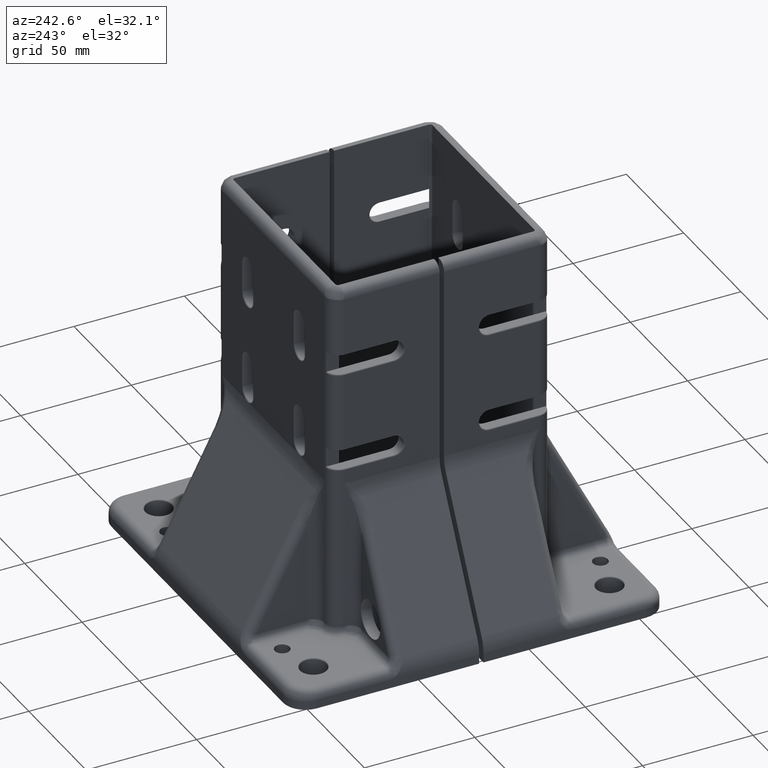
[diagram: clean part render]
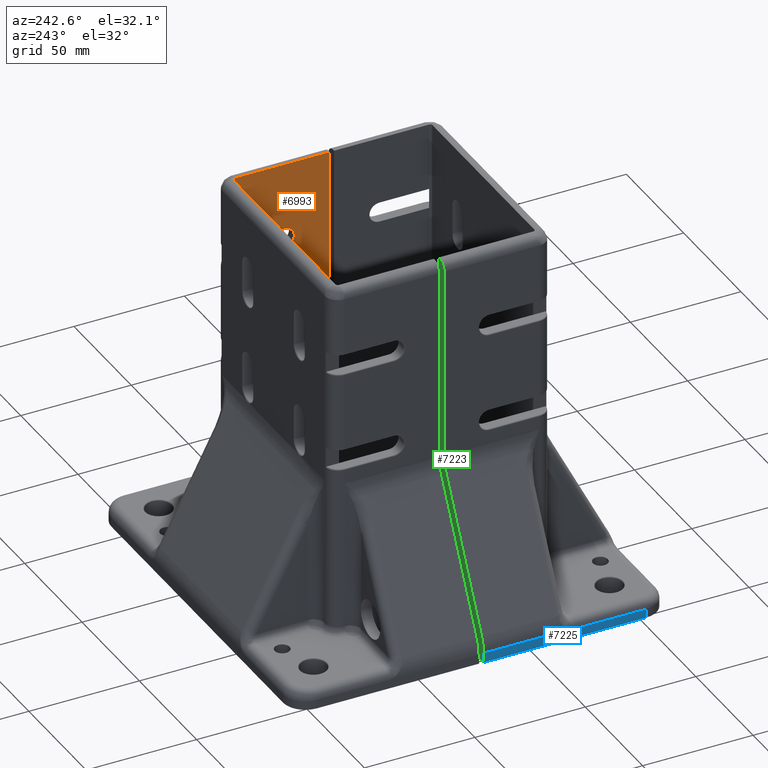
[diagram: same view with three faces highlighted in distinct colors, each labeled with its STEP entity id]
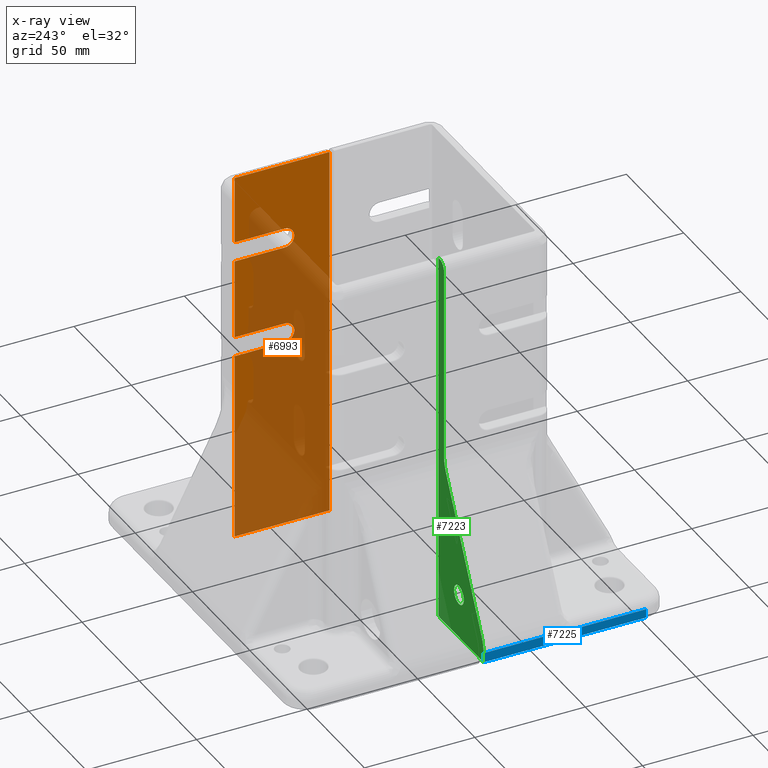
[diagram: x-ray of the same camera — body ghosted, the three highlighted faces saturated]
A machine part, auxiliary view with three faces highlighted in distinct colors.
The next image is the same camera in x-ray (body ghosted, the three faces saturated) — at least one of them is partly hidden behind the body in this view.
Their STEP definitions:

[orange] entity #6993 — the highlighted planar face has unit normal (1, 0, 0).
#132=PLANE('',#7522);
#437=FACE_OUTER_BOUND('',#861,.T.);
#861=EDGE_LOOP('',(#4742,#4743,#4744,#4745,#4746,#4747,#4748,#4749,#4750,
#4751,#4752,#4753));
#1345=LINE('',#11285,#1847);
#1346=LINE('',#11289,#1848);
#1347=LINE('',#11291,#1849);
#1348=LINE('',#11293,#1850);
#1349=LINE('',#11295,#1851);
#1350=LINE('',#11297,#1852);
#1351=LINE('',#11299,#1853);
#1352=LINE('',#11301,#1854);
#1353=LINE('',#11305,#1855);
#1354=LINE('',#11306,#1856);
#1847=VECTOR('',#8588,1000.);
#1848=VECTOR('',#8591,1000.);
#1849=VECTOR('',#8592,1000.);
#1850=VECTOR('',#8593,1000.);
#1851=VECTOR('',#8594,1000.);
#1852=VECTOR('',#8595,1000.);
#1853=VECTOR('',#8596,1000.);
#1854=VECTOR('',#8597,1000.);
#1855=VECTOR('',#8600,1000.);
#1856=VECTOR('',#8601,1000.);
#2381=CIRCLE('',#7523,4.5);
#2382=CIRCLE('',#7524,4.5);
#2927=VERTEX_POINT('',#11283);
#2928=VERTEX_POINT('',#11284);
#2929=VERTEX_POINT('',#11286);
#2930=VERTEX_POINT('',#11288);
#2931=VERTEX_POINT('',#11290);
#2932=VERTEX_POINT('',#11292);
#2933=VERTEX_POINT('',#11294);
#2934=VERTEX_POINT('',#11296);
#2935=VERTEX_POINT('',#11298);
#2936=VERTEX_POINT('',#11300);
#2937=VERTEX_POINT('',#11302);
#2938=VERTEX_POINT('',#11304);
#3609=EDGE_CURVE('',#2927,#2928,#1345,.T.);
#3610=EDGE_CURVE('',#2929,#2927,#2381,.T.);
#3611=EDGE_CURVE('',#2930,#2929,#1346,.T.);
#3612=EDGE_CURVE('',#2930,#2931,#1347,.T.);
#3613=EDGE_CURVE('',#2931,#2932,#1348,.T.);
#3614=EDGE_CURVE('',#2933,#2932,#1349,.T.);
#3615=EDGE_CURVE('',#2934,#2933,#1350,.T.);
#3616=EDGE_CURVE('',#2934,#2935,#1351,.T.);
#3617=EDGE_CURVE('',#2936,#2935,#1352,.T.);
#3618=EDGE_CURVE('',#2937,#2936,#2382,.T.);
#3619=EDGE_CURVE('',#2938,#2937,#1353,.T.);
#3620=EDGE_CURVE('',#2938,#2928,#1354,.T.);
#4742=ORIENTED_EDGE('',*,*,#3609,.F.);
#4743=ORIENTED_EDGE('',*,*,#3610,.F.);
#4744=ORIENTED_EDGE('',*,*,#3611,.F.);
#4745=ORIENTED_EDGE('',*,*,#3612,.T.);
#4746=ORIENTED_EDGE('',*,*,#3613,.T.);
#4747=ORIENTED_EDGE('',*,*,#3614,.F.);
#4748=ORIENTED_EDGE('',*,*,#3615,.F.);
#4749=ORIENTED_EDGE('',*,*,#3616,.T.);
#4750=ORIENTED_EDGE('',*,*,#3617,.F.);
#4751=ORIENTED_EDGE('',*,*,#3618,.F.);
#4752=ORIENTED_EDGE('',*,*,#3619,.F.);
#4753=ORIENTED_EDGE('',*,*,#3620,.T.);
#6993=ADVANCED_FACE('',(#437),#132,.F.);
#7522=AXIS2_PLACEMENT_3D('',#11282,#8586,#8587);
#7523=AXIS2_PLACEMENT_3D('',#11287,#8589,#8590);
#7524=AXIS2_PLACEMENT_3D('',#11303,#8598,#8599);
#8586=DIRECTION('center_axis',(1.,1.5770213417971E-16,0.));
#8587=DIRECTION('ref_axis',(-1.5770213417971E-16,1.,0.));
#8588=DIRECTION('',(0.,1.,0.));
#8589=DIRECTION('center_axis',(-1.,0.,0.));
#8590=DIRECTION('ref_axis',(0.,0.,1.));
#8591=DIRECTION('',(0.,-1.,0.));
#8592=DIRECTION('',(0.,0.,-1.));
#8593=DIRECTION('',(1.5770213417971E-16,-1.,0.));
#8594=DIRECTION('',(0.,0.,-1.));
#8595=DIRECTION('',(1.5770213417971E-16,-1.,0.));
#8596=DIRECTION('',(0.,0.,-1.));
#8597=DIRECTION('',(0.,1.,0.));
#8598=DIRECTION('center_axis',(-1.,0.,0.));
#8599=DIRECTION('ref_axis',(0.,0.,1.));
#8600=DIRECTION('',(0.,-1.,0.));
#8601=DIRECTION('',(0.,0.,-1.));
#11282=CARTESIAN_POINT('Origin',(22.9718944343886,20.0472033968336,169.99999999998));
#11283=CARTESIAN_POINT('',(22.9718944343886,-3.45279660316642,94.4999999999796));
#11284=CARTESIAN_POINT('',(22.9718944343886,19.0472033968336,94.4999999999796));
#11285=CARTESIAN_POINT('',(22.9718944343886,25.0472033968336,94.4999999999796));
#11286=CARTESIAN_POINT('',(22.9718944343886,-3.45279660316642,85.4999999999795));
#11287=CARTESIAN_POINT('Origin',(22.9718944343886,-3.45279660316642,89.9999999999795));
#11288=CARTESIAN_POINT('',(22.9718944343886,19.0472033968336,85.4999999999795));
#11289=CARTESIAN_POINT('',(22.9718944343886,-3.45279660316642,85.4999999999795));
#11290=CARTESIAN_POINT('',(22.9718944343886,19.0472033968336,-2.04697370165263E-11));
#11291=CARTESIAN_POINT('',(22.9718944343886,19.0472033968336,-2.04697370165263E-11));
#11292=CARTESIAN_POINT('',(22.9718944343886,-23.9527966031664,-2.04697370165263E-11));
#11293=CARTESIAN_POINT('',(22.9718944343886,20.0472033968336,-2.04697370165263E-11));
#11294=CARTESIAN_POINT('',(22.9718944343886,-23.9527966031664,169.99999999998));
#11295=CARTESIAN_POINT('',(22.9718944343886,-23.9527966031664,169.99999999998));
#11296=CARTESIAN_POINT('',(22.9718944343886,19.0472033968336,169.99999999998));
#11297=CARTESIAN_POINT('',(22.9718944343886,20.0472033968336,169.99999999998));
#11298=CARTESIAN_POINT('',(22.9718944343886,19.0472033968336,139.49999999998));
#11299=CARTESIAN_POINT('',(22.9718944343886,19.0472033968336,-2.04697370165263E-11));
#11300=CARTESIAN_POINT('',(22.9718944343886,-3.45279660316642,139.49999999998));
#11301=CARTESIAN_POINT('',(22.9718944343886,25.0472033968336,139.49999999998));
#11302=CARTESIAN_POINT('',(22.9718944343886,-3.45279660316642,130.49999999998));
#11303=CARTESIAN_POINT('Origin',(22.9718944343886,-3.45279660316642,134.99999999998));
#11304=CARTESIAN_POINT('',(22.9718944343886,19.0472033968336,130.49999999998));
#11305=CARTESIAN_POINT('',(22.9718944343886,-3.45279660316642,130.49999999998));
#11306=CARTESIAN_POINT('',(22.9718944343886,19.0472033968336,-2.04697370165263E-11));

[blue] entity #7225 — the highlighted planar face has unit normal (-1, -0, 0).
#207=PLANE('',#8049);
#669=FACE_OUTER_BOUND('',#1129,.T.);
#1129=EDGE_LOOP('',(#6074,#6075,#6076,#6077,#6078,#6079));
#1612=LINE('',#14376,#2114);
#1699=LINE('',#14871,#2201);
#1709=LINE('',#14899,#2211);
#1710=LINE('',#14901,#2212);
#1711=LINE('',#14902,#2213);
#2114=VECTOR('',#9777,1000.);
#2201=VECTOR('',#9984,1000.);
#2211=VECTOR('',#10008,1000.);
#2212=VECTOR('',#10009,1000.);
#2213=VECTOR('',#10010,1000.);
#2685=CIRCLE('',#8050,7.);
#3281=VERTEX_POINT('',#14373);
#3282=VERTEX_POINT('',#14375);
#3394=VERTEX_POINT('',#14870);
#3404=VERTEX_POINT('',#14896);
#3405=VERTEX_POINT('',#14897);
#3406=VERTEX_POINT('',#14900);
#4187=EDGE_CURVE('',#3281,#3282,#1612,.T.);
#4326=EDGE_CURVE('',#3394,#3282,#1699,.T.);
#4340=EDGE_CURVE('',#3404,#3405,#2685,.T.);
#4341=EDGE_CURVE('',#3405,#3394,#1709,.T.);
#4342=EDGE_CURVE('',#3281,#3406,#1710,.T.);
#4343=EDGE_CURVE('',#3406,#3404,#1711,.T.);
#6074=ORIENTED_EDGE('',*,*,#4340,.T.);
#6075=ORIENTED_EDGE('',*,*,#4341,.T.);
#6076=ORIENTED_EDGE('',*,*,#4326,.T.);
#6077=ORIENTED_EDGE('',*,*,#4187,.F.);
#6078=ORIENTED_EDGE('',*,*,#4342,.T.);
#6079=ORIENTED_EDGE('',*,*,#4343,.T.);
#7225=ADVANCED_FACE('',(#669),#207,.T.);
#8049=AXIS2_PLACEMENT_3D('',#14895,#10004,#10005);
#8050=AXIS2_PLACEMENT_3D('',#14898,#10006,#10007);
#9777=DIRECTION('',(-2.39187444552253E-16,1.,2.46519032881566E-32));
#9984=DIRECTION('',(0.,0.,-1.));
#10004=DIRECTION('center_axis',(-1.,-2.39187444552253E-16,0.));
#10005=DIRECTION('ref_axis',(0.,0.,-1.));
#10006=DIRECTION('center_axis',(1.,2.39187444552253E-16,0.));
#10007=DIRECTION('ref_axis',(0.,0.,-1.));
#10008=DIRECTION('',(-2.39187444552253E-16,1.,2.46519032881566E-32));
#10009=DIRECTION('',(0.,0.,1.));
#10010=DIRECTION('',(-2.39187444552253E-16,1.,2.46519032881566E-32));
#14373=CARTESIAN_POINT('',(-107.528105565611,-99.4527966031664,-2.04697370165263E-11));
#14375=CARTESIAN_POINT('',(-107.528105565611,-25.9527966031664,-2.04697370165263E-11));
#14376=CARTESIAN_POINT('',(-107.528105565611,-25.9527966031664,-2.04697370165263E-11));
#14870=CARTESIAN_POINT('',(-107.528105565611,-25.9527966031664,4.36487007474566));
#14871=CARTESIAN_POINT('',(-107.528105565611,-25.9527966031664,7.99999999997953));
#14895=CARTESIAN_POINT('Origin',(-107.528105565611,-25.9527966031664,7.99999999997953));
#14896=CARTESIAN_POINT('',(-107.528105565611,-66.9527966031664,3.99999999997953));
#14897=CARTESIAN_POINT('',(-107.528105565611,-64.7223143962735,4.36487007474566));
#14898=CARTESIAN_POINT('Origin',(-107.528105565611,-66.9527966031664,10.9999999999795));
#14899=CARTESIAN_POINT('',(-107.528105565611,-25.9527966031664,4.36487007474566));
#14900=CARTESIAN_POINT('',(-107.528105565611,-99.4527966031664,3.99999999997953));
#14901=CARTESIAN_POINT('',(-107.528105565611,-99.4527966031664,7.99999999997953));
#14902=CARTESIAN_POINT('',(-107.528105565611,-66.9527966031664,3.99999999997953));

[green] entity #7223 — the highlighted planar face has unit normal (0, -1, -0).
#100=FACE_BOUND('',#1127,.T.);
#205=PLANE('',#8042);
#667=FACE_OUTER_BOUND('',#1126,.T.);
#1126=EDGE_LOOP('',(#6051,#6052,#6053,#6054,#6055,#6056,#6057,#6058,#6059));
#1127=EDGE_LOOP('',(#6060,#6061));
#1588=LINE('',#14312,#2090);
#1600=LINE('',#14337,#2102);
#1613=LINE('',#14377,#2115);
#1633=LINE('',#14448,#2135);
#1666=LINE('',#14731,#2168);
#1699=LINE('',#14871,#2201);
#2090=VECTOR('',#9729,1000.);
#2102=VECTOR('',#9745,1000.);
#2115=VECTOR('',#9778,1000.);
#2135=VECTOR('',#9832,1000.);
#2168=VECTOR('',#9903,1000.);
#2201=VECTOR('',#9984,1000.);
#2554=CIRCLE('',#7861,4.25);
#2555=CIRCLE('',#7862,4.25);
#2680=CIRCLE('',#8043,4.);
#2681=CIRCLE('',#8044,15.);
#2682=CIRCLE('',#8045,15.);
#3137=VERTEX_POINT('',#13660);
#3138=VERTEX_POINT('',#13662);
#3253=VERTEX_POINT('',#14309);
#3254=VERTEX_POINT('',#14311);
#3264=VERTEX_POINT('',#14334);
#3265=VERTEX_POINT('',#14336);
#3282=VERTEX_POINT('',#14375);
#3316=VERTEX_POINT('',#14447);
#3359=VERTEX_POINT('',#14729);
#3360=VERTEX_POINT('',#14730);
#3394=VERTEX_POINT('',#14870);
#4023=EDGE_CURVE('',#3137,#3138,#2554,.T.);
#4024=EDGE_CURVE('',#3138,#3137,#2555,.T.);
#4154=EDGE_CURVE('',#3253,#3254,#1588,.T.);
#4167=EDGE_CURVE('',#3265,#3264,#1600,.T.);
#4188=EDGE_CURVE('',#3264,#3282,#1613,.T.);
#4224=EDGE_CURVE('',#3265,#3316,#1633,.T.);
#4273=EDGE_CURVE('',#3359,#3360,#1666,.T.);
#4325=EDGE_CURVE('',#3253,#3316,#2680,.T.);
#4326=EDGE_CURVE('',#3394,#3282,#1699,.T.);
#4327=EDGE_CURVE('',#3394,#3360,#2681,.T.);
#4328=EDGE_CURVE('',#3359,#3254,#2682,.T.);
#6051=ORIENTED_EDGE('',*,*,#4154,.F.);
#6052=ORIENTED_EDGE('',*,*,#4325,.T.);
#6053=ORIENTED_EDGE('',*,*,#4224,.F.);
#6054=ORIENTED_EDGE('',*,*,#4167,.T.);
#6055=ORIENTED_EDGE('',*,*,#4188,.T.);
#6056=ORIENTED_EDGE('',*,*,#4326,.F.);
#6057=ORIENTED_EDGE('',*,*,#4327,.T.);
#6058=ORIENTED_EDGE('',*,*,#4273,.F.);
#6059=ORIENTED_EDGE('',*,*,#4328,.T.);
#6060=ORIENTED_EDGE('',*,*,#4024,.F.);
#6061=ORIENTED_EDGE('',*,*,#4023,.F.);
#7223=ADVANCED_FACE('',(#667,#100),#205,.F.);
#7861=AXIS2_PLACEMENT_3D('',#13663,#9468,#9469);
#7862=AXIS2_PLACEMENT_3D('',#13664,#9470,#9471);
#8042=AXIS2_PLACEMENT_3D('',#14868,#9980,#9981);
#8043=AXIS2_PLACEMENT_3D('',#14869,#9982,#9983);
#8044=AXIS2_PLACEMENT_3D('',#14872,#9985,#9986);
#8045=AXIS2_PLACEMENT_3D('',#14873,#9987,#9988);
#9468=DIRECTION('center_axis',(-2.39187444552254E-16,1.,2.46519032881566E-32));
#9469=DIRECTION('ref_axis',(-5.89642575084348E-48,2.46519032881566E-32,
-1.));
#9470=DIRECTION('center_axis',(-2.39187444552254E-16,1.,2.46519032881566E-32));
#9471=DIRECTION('ref_axis',(-5.89642575084348E-48,2.46519032881566E-32,
-1.));
#9729=DIRECTION('',(0.,0.,-1.));
#9745=DIRECTION('',(0.,0.,-1.));
#9778=DIRECTION('',(-1.,-1.28969232628992E-16,2.7170887009258E-48));
#9832=DIRECTION('',(-1.,-1.28969232628992E-16,2.7170887009258E-48));
#9903=DIRECTION('',(-0.457797695042005,-1.09499460799009E-16,-0.889056393269981));
#9980=DIRECTION('center_axis',(1.28969232628992E-16,-1.,-2.46519032881566E-32));
#9981=DIRECTION('ref_axis',(1.,1.28969232628992E-16,-2.7170887009258E-48));
#9982=DIRECTION('center_axis',(-1.28969232628992E-16,1.,2.46519032881566E-32));
#9983=DIRECTION('ref_axis',(1.,1.28969232628992E-16,3.17933704991767E-48));
#9984=DIRECTION('',(0.,0.,-1.));
#9985=DIRECTION('center_axis',(-1.28969232628992E-16,1.,2.46519032881566E-32));
#9986=DIRECTION('ref_axis',(1.,1.28969232628992E-16,-2.52256099827901E-48));
#9987=DIRECTION('center_axis',(1.28969232628992E-16,-1.,-2.46519032881566E-32));
#9988=DIRECTION('ref_axis',(1.,1.28969232628992E-16,-2.52256099827901E-48));
#13660=CARTESIAN_POINT('',(-86.0281055656114,-25.9527966031664,24.2499999999795));
#13662=CARTESIAN_POINT('',(-86.0281055656114,-25.9527966031664,15.7499999999795));
#13663=CARTESIAN_POINT('Origin',(-86.0281055656114,-25.9527966031664,19.9999999999795));
#13664=CARTESIAN_POINT('Origin',(-86.0281055656114,-25.9527966031664,19.9999999999795));
#14309=CARTESIAN_POINT('',(-73.0281055656114,-25.9527966031664,165.99999999998));
#14311=CARTESIAN_POINT('',(-73.0281055656114,-25.9527966031664,78.6351299252134));
#14312=CARTESIAN_POINT('',(-73.0281055656114,-25.9527966031664,169.99999999998));
#14334=CARTESIAN_POINT('',(-68.0281055656114,-25.9527966031664,-2.04697370165263E-11));
#14336=CARTESIAN_POINT('',(-68.0281055656114,-25.9527966031664,169.99999999998));
#14337=CARTESIAN_POINT('',(-68.0281055656114,-25.9527966031664,169.99999999998));
#14375=CARTESIAN_POINT('',(-107.528105565611,-25.9527966031664,-2.04697370165263E-11));
#14377=CARTESIAN_POINT('',(-73.0281055656114,-25.9527966031664,-2.04697370165263E-11));
#14447=CARTESIAN_POINT('',(-69.0281055656114,-25.9527966031664,169.99999999998));
#14448=CARTESIAN_POINT('',(-73.0281055656114,-25.9527966031664,169.99999999998));
#14729=CARTESIAN_POINT('',(-74.6922596665617,-25.9527966031664,71.7681644995833));
#14730=CARTESIAN_POINT('',(-105.863951464661,-25.9527966031664,11.2318355003757));
#14731=CARTESIAN_POINT('',(-84.652427677303,-25.9527966031664,52.4252295222017));
#14868=CARTESIAN_POINT('Origin',(-73.0281055656114,-25.9527966031664,169.99999999998));
#14869=CARTESIAN_POINT('Origin',(-69.0281055656114,-25.9527966031664,165.99999999998));
#14870=CARTESIAN_POINT('',(-107.528105565611,-25.9527966031664,4.36487007474566));
#14871=CARTESIAN_POINT('',(-107.528105565611,-25.9527966031664,7.99999999997953));
#14872=CARTESIAN_POINT('Origin',(-92.5281055656114,-25.9527966031664,4.36487007474566));
#14873=CARTESIAN_POINT('Origin',(-88.0281055656114,-25.9527966031664,78.6351299252134));